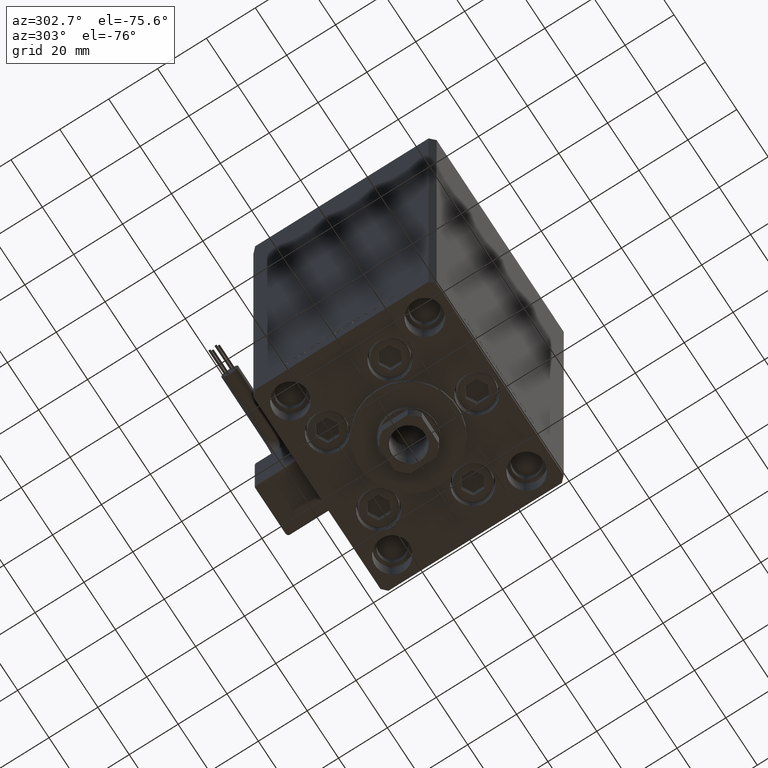
[diagram: clean part render]
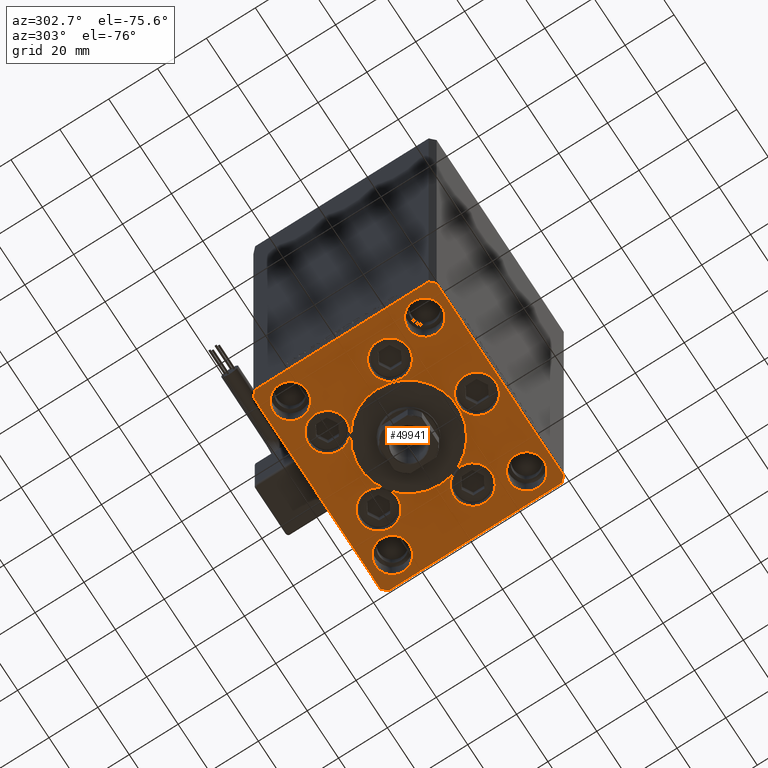
[diagram: same view with one face highlighted and labeled with its STEP entity id]
A machine part, auxiliary view. The second image highlights one B-rep face of the part: STEP entity #49941.
In plain terms, the highlighted planar face has unit normal (0, 0, -1).
Its self-contained STEP definition (entity closure, byte-faithful):
#216 = CARTESIAN_POINT ( 'NONE',  ( 32.50000000000000000, 27.49999999999999645, 0.000000000000000000 ) ) ;
#387 = AXIS2_PLACEMENT_3D ( 'NONE', #13290, #619, #37102 ) ;
#454 = CARTESIAN_POINT ( 'NONE',  ( 42.50000000000001421, 35.50000000000002132, 0.000000000000000000 ) ) ;
#484 = AXIS2_PLACEMENT_3D ( 'NONE', #39949, #24352, #39688 ) ;
#619 = DIRECTION ( 'NONE',  ( 0.000000000000000000, 0.000000000000000000, 1.000000000000000000 ) ) ;
#1082 = VERTEX_POINT ( 'NONE', #30146 ) ;
#1357 = CIRCLE ( 'NONE', #484, 6.999999999999999112 ) ;
#1759 = VECTOR ( 'NONE', #6700, 1000.000000000000000 ) ;
#1818 = FACE_BOUND ( 'NONE', #42231, .T. ) ;
#1999 = DIRECTION ( 'NONE',  ( 1.000000000000000000, 0.000000000000000000, 0.000000000000000000 ) ) ;
#2741 = LINE ( 'NONE', #2998, #5731 ) ;
#2989 = EDGE_CURVE ( 'NONE', #48200, #29190, #36758, .T. ) ;
#2998 = CARTESIAN_POINT ( 'NONE',  ( -42.50000000000000000, -35.50000000000004263, 0.000000000000000000 ) ) ;
#3447 = EDGE_CURVE ( 'NONE', #46703, #33968, #1357, .T. ) ;
#3696 = CIRCLE ( 'NONE', #8883, 6.999999999999999112 ) ;
#4091 = EDGE_CURVE ( 'NONE', #46181, #25485, #18801, .T. ) ;
#4224 = FACE_BOUND ( 'NONE', #17058, .T. ) ;
#4574 = VERTEX_POINT ( 'NONE', #36979 ) ;
#4696 = VERTEX_POINT ( 'NONE', #42241 ) ;
#4725 = DIRECTION ( 'NONE',  ( 0.000000000000000000, 0.000000000000000000, 1.000000000000000000 ) ) ;
#5569 = CARTESIAN_POINT ( 'NONE',  ( -26.39865316429777664, -9.333333333333330373, 0.000000000000000000 ) ) ;
#5731 = VECTOR ( 'NONE', #19114, 1000.000000000000000 ) ;
#6003 = EDGE_CURVE ( 'NONE', #46388, #50130, #47449, .T. ) ;
#6030 = CARTESIAN_POINT ( 'NONE',  ( 0.000000000000000000, 0.000000000000000000, 0.000000000000000000 ) ) ;
#6044 = ORIENTED_EDGE ( 'NONE', *, *, #27010, .F. ) ;
#6213 = DIRECTION ( 'NONE',  ( 1.000000000000000000, 0.000000000000000000, 0.000000000000000000 ) ) ;
#6226 = CIRCLE ( 'NONE', #19729, 7.750000000000000000 ) ;
#6416 = CARTESIAN_POINT ( 'NONE',  ( -42.50000000000000711, 35.50000000000000000, 0.000000000000000000 ) ) ;
#6700 = DIRECTION ( 'NONE',  ( -0.7071067811865524577, 0.7071067811865426878, 0.000000000000000000 ) ) ;
#6708 = DIRECTION ( 'NONE',  ( 1.000000000000000000, 0.000000000000000000, 0.000000000000000000 ) ) ;
#6782 = ORIENTED_EDGE ( 'NONE', *, *, #3447, .F. ) ;
#8395 = CIRCLE ( 'NONE', #45525, 7.750000000000000000 ) ;
#8461 = EDGE_CURVE ( 'NONE', #4696, #18109, #52279, .T. ) ;
#8694 = DIRECTION ( 'NONE',  ( 1.000000000000000000, 0.000000000000000000, 0.000000000000000000 ) ) ;
#8699 = ORIENTED_EDGE ( 'NONE', *, *, #18342, .F. ) ;
#8883 = AXIS2_PLACEMENT_3D ( 'NONE', #9352, #21254, #25493 ) ;
#8915 = EDGE_CURVE ( 'NONE', #18109, #4696, #8395, .T. ) ;
#9352 = CARTESIAN_POINT ( 'NONE',  ( -32.50000000000000000, 27.50000000000000711, 0.000000000000000000 ) ) ;
#9373 = CIRCLE ( 'NONE', #32209, 6.999999999999999112 ) ;
#9610 = CARTESIAN_POINT ( 'NONE',  ( 0.000000000000000000, -6.938893903907228378E-15, 0.000000000000000000 ) ) ;
#9662 = ORIENTED_EDGE ( 'NONE', *, *, #33622, .T. ) ;
#9724 = VERTEX_POINT ( 'NONE', #35745 ) ;
#9844 = AXIS2_PLACEMENT_3D ( 'NONE', #6030, #22435, #45702 ) ;
#10119 = ORIENTED_EDGE ( 'NONE', *, *, #12721, .T. ) ;
#10167 = DIRECTION ( 'NONE',  ( 1.000000000000000000, 0.000000000000000000, 0.000000000000000000 ) ) ;
#10169 = VERTEX_POINT ( 'NONE', #29244 ) ;
#10662 = LINE ( 'NONE', #42924, #1759 ) ;
#10998 = EDGE_LOOP ( 'NONE', ( #16323, #8699 ) ) ;
#11091 = AXIS2_PLACEMENT_3D ( 'NONE', #216, #16330, #21091 ) ;
#11125 = CARTESIAN_POINT ( 'NONE',  ( 0.000000000000000000, -6.938893903907228378E-15, 0.000000000000000000 ) ) ;
#11222 = CARTESIAN_POINT ( 'NONE',  ( 42.50000000000000711, -35.49999999999992895, 0.000000000000000000 ) ) ;
#11417 = DIRECTION ( 'NONE',  ( 1.000000000000000000, 0.000000000000000000, 0.000000000000000000 ) ) ;
#11522 = VECTOR ( 'NONE', #39530, 1000.000000000000000 ) ;
#11791 = ORIENTED_EDGE ( 'NONE', *, *, #26239, .F. ) ;
#12159 = ORIENTED_EDGE ( 'NONE', *, *, #16751, .T. ) ;
#12512 = EDGE_CURVE ( 'NONE', #33968, #46703, #18618, .T. ) ;
#12721 = EDGE_CURVE ( 'NONE', #25485, #37350, #37945, .T. ) ;
#12985 = AXIS2_PLACEMENT_3D ( 'NONE', #25431, #14030, #38365 ) ;
#13165 = AXIS2_PLACEMENT_3D ( 'NONE', #29770, #49595, #1999 ) ;
#13290 = CARTESIAN_POINT ( 'NONE',  ( -32.50000000000000000, 27.50000000000000711, 0.000000000000000000 ) ) ;
#13895 = EDGE_CURVE ( 'NONE', #37176, #46388, #16741, .T. ) ;
#13965 = ORIENTED_EDGE ( 'NONE', *, *, #39392, .F. ) ;
#14030 = DIRECTION ( 'NONE',  ( 0.000000000000000000, 0.000000000000000000, 1.000000000000000000 ) ) ;
#14488 = FACE_BOUND ( 'NONE', #39494, .T. ) ;
#15528 = AXIS2_PLACEMENT_3D ( 'NONE', #32578, #16442, #11417 ) ;
#15617 = DIRECTION ( 'NONE',  ( 0.000000000000000000, 0.000000000000000000, 1.000000000000000000 ) ) ;
#15864 = ORIENTED_EDGE ( 'NONE', *, *, #49179, .T. ) ;
#16075 = VERTEX_POINT ( 'NONE', #31928 ) ;
#16122 = CIRCLE ( 'NONE', #50775, 7.750000000000000000 ) ;
#16194 = ORIENTED_EDGE ( 'NONE', *, *, #8461, .F. ) ;
#16241 = CARTESIAN_POINT ( 'NONE',  ( 0.000000000000000000, -28.00000000000000000, 0.000000000000000000 ) ) ;
#16323 = ORIENTED_EDGE ( 'NONE', *, *, #24286, .F. ) ;
#16330 = DIRECTION ( 'NONE',  ( 0.000000000000000000, 0.000000000000000000, 1.000000000000000000 ) ) ;
#16442 = DIRECTION ( 'NONE',  ( 0.000000000000000000, 0.000000000000000000, 1.000000000000000000 ) ) ;
#16551 = CARTESIAN_POINT ( 'NONE',  ( 25.50000000000000355, 27.49999999999999645, 0.000000000000000000 ) ) ;
#16741 = LINE ( 'NONE', #19651, #17786 ) ;
#16751 = EDGE_CURVE ( 'NONE', #50130, #16075, #10662, .T. ) ;
#17000 = CARTESIAN_POINT ( 'NONE',  ( -25.50000000000000355, -27.50000000000000355, 0.000000000000000000 ) ) ;
#17015 = CARTESIAN_POINT ( 'NONE',  ( -7.750000000000000000, -28.00000000000000000, 0.000000000000000000 ) ) ;
#17058 = EDGE_LOOP ( 'NONE', ( #31295, #19209 ) ) ;
#17214 = CIRCLE ( 'NONE', #12985, 7.750000000000000000 ) ;
#17368 = EDGE_CURVE ( 'NONE', #22849, #42175, #9373, .T. ) ;
#17706 = EDGE_CURVE ( 'NONE', #9724, #1082, #16122, .T. ) ;
#17786 = VECTOR ( 'NONE', #52181, 1000.000000000000114 ) ;
#17878 = VERTEX_POINT ( 'NONE', #46050 ) ;
#17926 = PLANE ( 'NONE',  #9844 ) ;
#17984 = DIRECTION ( 'NONE',  ( 1.000000000000000000, 0.000000000000000000, 0.000000000000000000 ) ) ;
#18109 = VERTEX_POINT ( 'NONE', #42027 ) ;
#18167 = ORIENTED_EDGE ( 'NONE', *, *, #6003, .T. ) ;
#18196 = FACE_BOUND ( 'NONE', #31105, .T. ) ;
#18206 = ORIENTED_EDGE ( 'NONE', *, *, #12512, .F. ) ;
#18325 = DIRECTION ( 'NONE',  ( 0.000000000000000000, 0.000000000000000000, 1.000000000000000000 ) ) ;
#18342 = EDGE_CURVE ( 'NONE', #30128, #4574, #44012, .T. ) ;
#18618 = CIRCLE ( 'NONE', #48174, 6.999999999999999112 ) ;
#18801 = LINE ( 'NONE', #35199, #41886 ) ;
#19114 = DIRECTION ( 'NONE',  ( 0.7071067811865487940, -0.7071067811865463515, 0.000000000000000000 ) ) ;
#19153 = DIRECTION ( 'NONE',  ( 0.000000000000000000, 0.000000000000000000, 1.000000000000000000 ) ) ;
#19209 = ORIENTED_EDGE ( 'NONE', *, *, #25756, .F. ) ;
#19651 = CARTESIAN_POINT ( 'NONE',  ( 40.50000000000001421, -37.49999999999992184, 0.000000000000000000 ) ) ;
#19729 = AXIS2_PLACEMENT_3D ( 'NONE', #16241, #19153, #44271 ) ;
#19888 = CARTESIAN_POINT ( 'NONE',  ( 34.14865316429777664, -9.333333333333330373, 0.000000000000000000 ) ) ;
#20692 = CIRCLE ( 'NONE', #42622, 7.750000000000000000 ) ;
#20839 = EDGE_CURVE ( 'NONE', #42175, #22849, #44965, .T. ) ;
#20930 = DIRECTION ( 'NONE',  ( 0.000000000000000000, 0.000000000000000000, 1.000000000000000000 ) ) ;
#21091 = DIRECTION ( 'NONE',  ( 1.000000000000000000, 0.000000000000000000, 0.000000000000000000 ) ) ;
#21254 = DIRECTION ( 'NONE',  ( 0.000000000000000000, 0.000000000000000000, 1.000000000000000000 ) ) ;
#22152 = DIRECTION ( 'NONE',  ( 0.000000000000000000, 0.000000000000000000, 1.000000000000000000 ) ) ;
#22435 = DIRECTION ( 'NONE',  ( -0.000000000000000000, 0.000000000000000000, 1.000000000000000000 ) ) ;
#22849 = VERTEX_POINT ( 'NONE', #40367 ) ;
#23165 = DIRECTION ( 'NONE',  ( 1.000000000000000000, 0.000000000000000000, 0.000000000000000000 ) ) ;
#23208 = CARTESIAN_POINT ( 'NONE',  ( 42.50000000000000711, -35.49999999999992895, 0.000000000000000000 ) ) ;
#24286 = EDGE_CURVE ( 'NONE', #4574, #30128, #41751, .T. ) ;
#24328 = FACE_BOUND ( 'NONE', #29168, .T. ) ;
#24352 = DIRECTION ( 'NONE',  ( 0.000000000000000000, 0.000000000000000000, 1.000000000000000000 ) ) ;
#24616 = VERTEX_POINT ( 'NONE', #37064 ) ;
#24644 = CARTESIAN_POINT ( 'NONE',  ( -20.00000000000000000, -6.938893903907228378E-15, 0.000000000000000000 ) ) ;
#24806 = CIRCLE ( 'NONE', #32382, 7.750000000000000000 ) ;
#25431 = CARTESIAN_POINT ( 'NONE',  ( 26.39865316429777664, -9.333333333333330373, 0.000000000000000000 ) ) ;
#25485 = VERTEX_POINT ( 'NONE', #6416 ) ;
#25493 = DIRECTION ( 'NONE',  ( 1.000000000000000000, 0.000000000000000000, 0.000000000000000000 ) ) ;
#25756 = EDGE_CURVE ( 'NONE', #29190, #48200, #20692, .T. ) ;
#25762 = CIRCLE ( 'NONE', #387, 6.999999999999999112 ) ;
#26239 = EDGE_CURVE ( 'NONE', #24616, #33814, #3696, .T. ) ;
#26329 = CARTESIAN_POINT ( 'NONE',  ( -26.39865316429777664, -9.333333333333330373, 0.000000000000000000 ) ) ;
#26607 = CARTESIAN_POINT ( 'NONE',  ( -39.50000000000000000, -27.50000000000000355, 0.000000000000000000 ) ) ;
#26645 = EDGE_CURVE ( 'NONE', #42740, #10169, #17214, .T. ) ;
#26669 = FACE_BOUND ( 'NONE', #30385, .T. ) ;
#26733 = CARTESIAN_POINT ( 'NONE',  ( -40.50000000000000000, 37.49999999999997158, 0.000000000000000000 ) ) ;
#27010 = EDGE_CURVE ( 'NONE', #17878, #44981, #6226, .T. ) ;
#27341 = CARTESIAN_POINT ( 'NONE',  ( -25.50000000000000355, 27.50000000000000711, 0.000000000000000000 ) ) ;
#27375 = AXIS2_PLACEMENT_3D ( 'NONE', #30099, #22152, #50952 ) ;
#27672 = CARTESIAN_POINT ( 'NONE',  ( -32.50000000000000000, -27.50000000000000355, 0.000000000000000000 ) ) ;
#27915 = VECTOR ( 'NONE', #38727, 1000.000000000000000 ) ;
#28165 = CIRCLE ( 'NONE', #34908, 20.00000000000000000 ) ;
#28223 = EDGE_CURVE ( 'NONE', #33814, #24616, #25762, .T. ) ;
#28477 = EDGE_CURVE ( 'NONE', #39753, #38255, #32464, .T. ) ;
#28938 = AXIS2_PLACEMENT_3D ( 'NONE', #30450, #37863, #34919 ) ;
#29168 = EDGE_LOOP ( 'NONE', ( #36773, #44305 ) ) ;
#29190 = VERTEX_POINT ( 'NONE', #40490 ) ;
#29233 = ORIENTED_EDGE ( 'NONE', *, *, #8915, .F. ) ;
#29244 = CARTESIAN_POINT ( 'NONE',  ( 18.64865316429777664, -9.333333333333328596, 0.000000000000000000 ) ) ;
#29251 = ORIENTED_EDGE ( 'NONE', *, *, #39307, .F. ) ;
#29286 = EDGE_LOOP ( 'NONE', ( #44777, #29251 ) ) ;
#29487 = CARTESIAN_POINT ( 'NONE',  ( 16.32291334290544071, 22.74999999999999289, 0.000000000000000000 ) ) ;
#29593 = FACE_OUTER_BOUND ( 'NONE', #46069, .T. ) ;
#29770 = CARTESIAN_POINT ( 'NONE',  ( -16.32291334290544071, 22.74999999999999289, 0.000000000000000000 ) ) ;
#29795 = LINE ( 'NONE', #30060, #43645 ) ;
#29899 = CIRCLE ( 'NONE', #15528, 7.750000000000000000 ) ;
#30008 = AXIS2_PLACEMENT_3D ( 'NONE', #29487, #33698, #10167 ) ;
#30037 = DIRECTION ( 'NONE',  ( 0.000000000000000000, 0.000000000000000000, 1.000000000000000000 ) ) ;
#30060 = CARTESIAN_POINT ( 'NONE',  ( -40.50000000000000711, -37.50000000000003553, 0.000000000000000000 ) ) ;
#30099 = CARTESIAN_POINT ( 'NONE',  ( 32.50000000000000000, 27.49999999999999645, 0.000000000000000000 ) ) ;
#30128 = VERTEX_POINT ( 'NONE', #16551 ) ;
#30146 = CARTESIAN_POINT ( 'NONE',  ( -24.07291334290544071, 22.74999999999999289, 0.000000000000000000 ) ) ;
#30385 = EDGE_LOOP ( 'NONE', ( #6044, #34946 ) ) ;
#30450 = CARTESIAN_POINT ( 'NONE',  ( 32.50000000000000000, -27.50000000000000355, 0.000000000000000000 ) ) ;
#30600 = ORIENTED_EDGE ( 'NONE', *, *, #17368, .F. ) ;
#31050 = ORIENTED_EDGE ( 'NONE', *, *, #26645, .F. ) ;
#31105 = EDGE_LOOP ( 'NONE', ( #31050, #13965 ) ) ;
#31295 = ORIENTED_EDGE ( 'NONE', *, *, #2989, .F. ) ;
#31354 = DIRECTION ( 'NONE',  ( 0.000000000000000000, 0.000000000000000000, 1.000000000000000000 ) ) ;
#31533 = CARTESIAN_POINT ( 'NONE',  ( 24.07291334290544071, 22.74999999999999289, 0.000000000000000000 ) ) ;
#31928 = CARTESIAN_POINT ( 'NONE',  ( 40.50000000000000711, 37.50000000000000711, 0.000000000000000000 ) ) ;
#32209 = AXIS2_PLACEMENT_3D ( 'NONE', #47464, #34545, #43241 ) ;
#32248 = FACE_BOUND ( 'NONE', #29286, .T. ) ;
#32382 = AXIS2_PLACEMENT_3D ( 'NONE', #51349, #18325, #38692 ) ;
#32464 = CIRCLE ( 'NONE', #40925, 20.00000000000000000 ) ;
#32578 = CARTESIAN_POINT ( 'NONE',  ( 0.000000000000000000, -28.00000000000000000, 0.000000000000000000 ) ) ;
#33316 = CARTESIAN_POINT ( 'NONE',  ( 40.50000000000000711, 37.50000000000000711, 0.000000000000000000 ) ) ;
#33549 = FACE_BOUND ( 'NONE', #34608, .T. ) ;
#33622 = EDGE_CURVE ( 'NONE', #16075, #46181, #50690, .T. ) ;
#33698 = DIRECTION ( 'NONE',  ( 0.000000000000000000, 0.000000000000000000, 1.000000000000000000 ) ) ;
#33814 = VERTEX_POINT ( 'NONE', #27341 ) ;
#33968 = VERTEX_POINT ( 'NONE', #17000 ) ;
#34497 = CARTESIAN_POINT ( 'NONE',  ( -42.50000000000000711, 35.50000000000000000, 0.000000000000000000 ) ) ;
#34545 = DIRECTION ( 'NONE',  ( 0.000000000000000000, 0.000000000000000000, 1.000000000000000000 ) ) ;
#34608 = EDGE_LOOP ( 'NONE', ( #18206, #6782 ) ) ;
#34908 = AXIS2_PLACEMENT_3D ( 'NONE', #9610, #37131, #40828 ) ;
#34919 = DIRECTION ( 'NONE',  ( 1.000000000000000000, 0.000000000000000000, 0.000000000000000000 ) ) ;
#34946 = ORIENTED_EDGE ( 'NONE', *, *, #40517, .F. ) ;
#35199 = CARTESIAN_POINT ( 'NONE',  ( -40.50000000000000000, 37.49999999999997158, 0.000000000000000000 ) ) ;
#35456 = DIRECTION ( 'NONE',  ( -0.7071067811865536790, -0.7071067811865414665, 0.000000000000000000 ) ) ;
#35712 = DIRECTION ( 'NONE',  ( 1.000000000000000000, 0.000000000000000000, 0.000000000000000000 ) ) ;
#35745 = CARTESIAN_POINT ( 'NONE',  ( -8.572913342905440715, 22.74999999999999289, 0.000000000000000000 ) ) ;
#36758 = CIRCLE ( 'NONE', #30008, 7.750000000000000000 ) ;
#36773 = ORIENTED_EDGE ( 'NONE', *, *, #17706, .F. ) ;
#36979 = CARTESIAN_POINT ( 'NONE',  ( 39.50000000000000000, 27.49999999999999645, 0.000000000000000000 ) ) ;
#37064 = CARTESIAN_POINT ( 'NONE',  ( -39.50000000000000000, 27.50000000000000711, 0.000000000000000000 ) ) ;
#37102 = DIRECTION ( 'NONE',  ( 1.000000000000000000, 0.000000000000000000, 0.000000000000000000 ) ) ;
#37131 = DIRECTION ( 'NONE',  ( 0.000000000000000000, 0.000000000000000000, 1.000000000000000000 ) ) ;
#37176 = VERTEX_POINT ( 'NONE', #47047 ) ;
#37350 = VERTEX_POINT ( 'NONE', #42184 ) ;
#37460 = CARTESIAN_POINT ( 'NONE',  ( 39.50000000000000000, -27.50000000000000355, 0.000000000000000000 ) ) ;
#37471 = ORIENTED_EDGE ( 'NONE', *, *, #28223, .F. ) ;
#37863 = DIRECTION ( 'NONE',  ( 0.000000000000000000, 0.000000000000000000, 1.000000000000000000 ) ) ;
#37945 = LINE ( 'NONE', #34497, #27915 ) ;
#38041 = FACE_BOUND ( 'NONE', #10998, .T. ) ;
#38255 = VERTEX_POINT ( 'NONE', #46482 ) ;
#38365 = DIRECTION ( 'NONE',  ( 1.000000000000000000, 0.000000000000000000, 0.000000000000000000 ) ) ;
#38467 = ORIENTED_EDGE ( 'NONE', *, *, #13895, .T. ) ;
#38692 = DIRECTION ( 'NONE',  ( 1.000000000000000000, 0.000000000000000000, 0.000000000000000000 ) ) ;
#38727 = DIRECTION ( 'NONE',  ( 9.773090005503134168E-17, -1.000000000000000000, 0.000000000000000000 ) ) ;
#39307 = EDGE_CURVE ( 'NONE', #38255, #39753, #28165, .T. ) ;
#39392 = EDGE_CURVE ( 'NONE', #10169, #42740, #24806, .T. ) ;
#39494 = EDGE_LOOP ( 'NONE', ( #37471, #11791 ) ) ;
#39530 = DIRECTION ( 'NONE',  ( 9.773090005503145261E-17, 1.000000000000000000, 0.000000000000000000 ) ) ;
#39688 = DIRECTION ( 'NONE',  ( 1.000000000000000000, 0.000000000000000000, 0.000000000000000000 ) ) ;
#39753 = VERTEX_POINT ( 'NONE', #24644 ) ;
#39949 = CARTESIAN_POINT ( 'NONE',  ( -32.50000000000000000, -27.50000000000000355, 0.000000000000000000 ) ) ;
#40367 = CARTESIAN_POINT ( 'NONE',  ( 25.50000000000000355, -27.50000000000000355, 0.000000000000000000 ) ) ;
#40471 = AXIS2_PLACEMENT_3D ( 'NONE', #26329, #30037, #6213 ) ;
#40490 = CARTESIAN_POINT ( 'NONE',  ( 8.572913342905442491, 22.74999999999999289, 0.000000000000000000 ) ) ;
#40517 = EDGE_CURVE ( 'NONE', #44981, #17878, #29899, .T. ) ;
#40828 = DIRECTION ( 'NONE',  ( 1.000000000000000000, 0.000000000000000000, 0.000000000000000000 ) ) ;
#40925 = AXIS2_PLACEMENT_3D ( 'NONE', #11125, #15617, #35712 ) ;
#41471 = CARTESIAN_POINT ( 'NONE',  ( 16.32291334290544071, 22.74999999999999289, 0.000000000000000000 ) ) ;
#41751 = CIRCLE ( 'NONE', #27375, 6.999999999999999112 ) ;
#41886 = VECTOR ( 'NONE', #35456, 1000.000000000000000 ) ;
#42027 = CARTESIAN_POINT ( 'NONE',  ( -34.14865316429777664, -9.333333333333328596, 0.000000000000000000 ) ) ;
#42156 = DIRECTION ( 'NONE',  ( 0.000000000000000000, 0.000000000000000000, 1.000000000000000000 ) ) ;
#42175 = VERTEX_POINT ( 'NONE', #37460 ) ;
#42184 = CARTESIAN_POINT ( 'NONE',  ( -42.50000000000000000, -35.50000000000004263, 0.000000000000000000 ) ) ;
#42231 = EDGE_LOOP ( 'NONE', ( #49368, #30600 ) ) ;
#42241 = CARTESIAN_POINT ( 'NONE',  ( -18.64865316429777664, -9.333333333333330373, 0.000000000000000000 ) ) ;
#42268 = FACE_BOUND ( 'NONE', #47017, .T. ) ;
#42622 = AXIS2_PLACEMENT_3D ( 'NONE', #41471, #4725, #8694 ) ;
#42740 = VERTEX_POINT ( 'NONE', #19888 ) ;
#42924 = CARTESIAN_POINT ( 'NONE',  ( 42.50000000000001421, 35.50000000000002132, 0.000000000000000000 ) ) ;
#43241 = DIRECTION ( 'NONE',  ( 1.000000000000000000, 0.000000000000000000, 0.000000000000000000 ) ) ;
#43645 = VECTOR ( 'NONE', #46172, 1000.000000000000000 ) ;
#44012 = CIRCLE ( 'NONE', #11091, 6.999999999999999112 ) ;
#44271 = DIRECTION ( 'NONE',  ( 1.000000000000000000, 0.000000000000000000, 0.000000000000000000 ) ) ;
#44305 = ORIENTED_EDGE ( 'NONE', *, *, #44721, .F. ) ;
#44721 = EDGE_CURVE ( 'NONE', #1082, #9724, #46945, .T. ) ;
#44777 = ORIENTED_EDGE ( 'NONE', *, *, #28477, .F. ) ;
#44965 = CIRCLE ( 'NONE', #28938, 6.999999999999999112 ) ;
#44981 = VERTEX_POINT ( 'NONE', #17015 ) ;
#45525 = AXIS2_PLACEMENT_3D ( 'NONE', #5569, #20930, #17984 ) ;
#45659 = ORIENTED_EDGE ( 'NONE', *, *, #4091, .T. ) ;
#45702 = DIRECTION ( 'NONE',  ( 1.000000000000000000, 0.000000000000000000, 0.000000000000000000 ) ) ;
#46050 = CARTESIAN_POINT ( 'NONE',  ( 7.750000000000000000, -28.00000000000000000, 0.000000000000000000 ) ) ;
#46069 = EDGE_LOOP ( 'NONE', ( #15864, #50968, #38467, #18167, #12159, #9662, #45659, #10119 ) ) ;
#46172 = DIRECTION ( 'NONE',  ( 1.000000000000000000, 1.370645709413773283E-15, 0.000000000000000000 ) ) ;
#46181 = VERTEX_POINT ( 'NONE', #26733 ) ;
#46198 = VECTOR ( 'NONE', #46972, 1000.000000000000000 ) ;
#46388 = VERTEX_POINT ( 'NONE', #23208 ) ;
#46447 = VERTEX_POINT ( 'NONE', #51228 ) ;
#46482 = CARTESIAN_POINT ( 'NONE',  ( 20.00000000000000000, -4.489600305612522259E-15, 0.000000000000000000 ) ) ;
#46703 = VERTEX_POINT ( 'NONE', #26607 ) ;
#46945 = CIRCLE ( 'NONE', #13165, 7.750000000000000000 ) ;
#46972 = DIRECTION ( 'NONE',  ( -1.000000000000000000, -4.283267841918041508E-16, 0.000000000000000000 ) ) ;
#47017 = EDGE_LOOP ( 'NONE', ( #16194, #29233 ) ) ;
#47047 = CARTESIAN_POINT ( 'NONE',  ( 40.50000000000001421, -37.49999999999992184, 0.000000000000000000 ) ) ;
#47400 = CARTESIAN_POINT ( 'NONE',  ( -16.32291334290544071, 22.74999999999999289, 0.000000000000000000 ) ) ;
#47449 = LINE ( 'NONE', #11222, #11522 ) ;
#47464 = CARTESIAN_POINT ( 'NONE',  ( 32.50000000000000000, -27.50000000000000355, 0.000000000000000000 ) ) ;
#48174 = AXIS2_PLACEMENT_3D ( 'NONE', #27672, #31354, #23165 ) ;
#48200 = VERTEX_POINT ( 'NONE', #31533 ) ;
#49179 = EDGE_CURVE ( 'NONE', #37350, #46447, #2741, .T. ) ;
#49368 = ORIENTED_EDGE ( 'NONE', *, *, #20839, .F. ) ;
#49595 = DIRECTION ( 'NONE',  ( 0.000000000000000000, 0.000000000000000000, 1.000000000000000000 ) ) ;
#49941 = ADVANCED_FACE ( 'NONE', ( #32248, #24328, #4224, #18196, #26669, #42268, #38041, #14488, #33549, #1818, #29593 ), #17926, .T. ) ;
#50130 = VERTEX_POINT ( 'NONE', #454 ) ;
#50690 = LINE ( 'NONE', #33316, #46198 ) ;
#50775 = AXIS2_PLACEMENT_3D ( 'NONE', #47400, #42156, #6708 ) ;
#50910 = EDGE_CURVE ( 'NONE', #46447, #37176, #29795, .T. ) ;
#50952 = DIRECTION ( 'NONE',  ( 1.000000000000000000, 0.000000000000000000, 0.000000000000000000 ) ) ;
#50968 = ORIENTED_EDGE ( 'NONE', *, *, #50910, .T. ) ;
#51228 = CARTESIAN_POINT ( 'NONE',  ( -40.50000000000000711, -37.50000000000003553, 0.000000000000000000 ) ) ;
#51349 = CARTESIAN_POINT ( 'NONE',  ( 26.39865316429777664, -9.333333333333330373, 0.000000000000000000 ) ) ;
#52181 = DIRECTION ( 'NONE',  ( 0.7071067811865474617, 0.7071067811865474617, 0.000000000000000000 ) ) ;
#52279 = CIRCLE ( 'NONE', #40471, 7.750000000000000000 ) ;